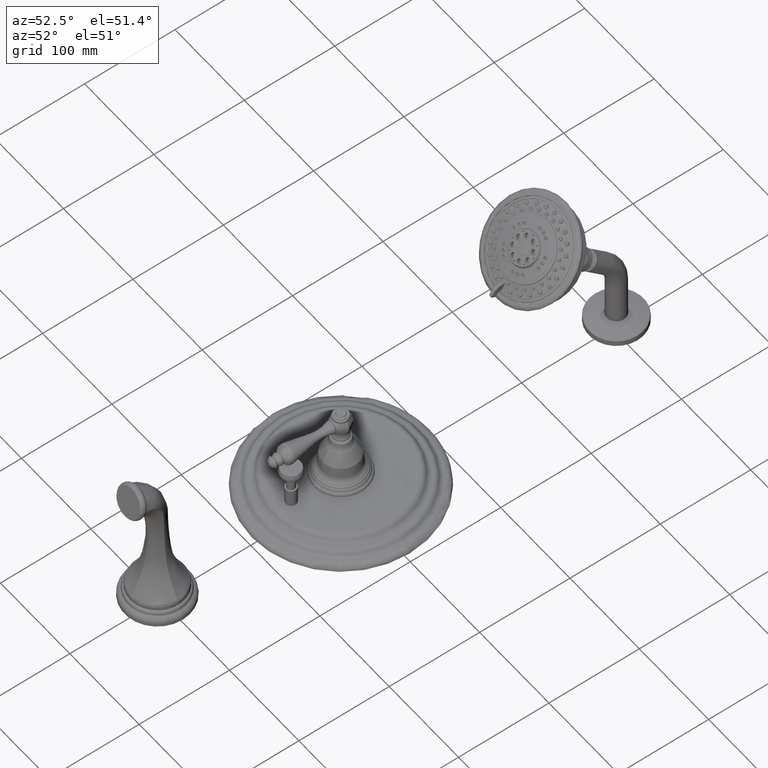
[diagram: clean part render]
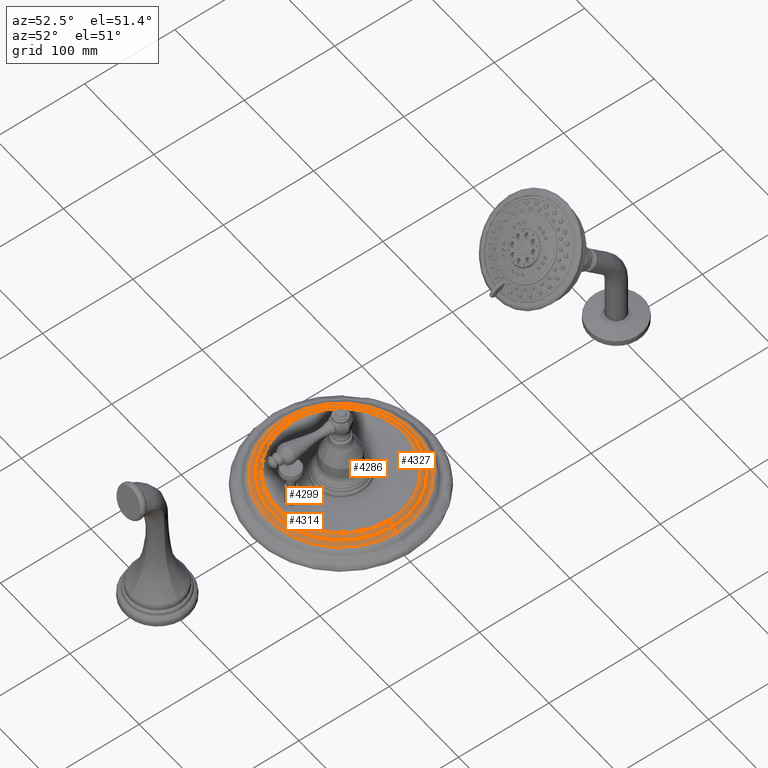
[diagram: same view with one multi-face feature highlighted, each face labeled with its STEP entity id]
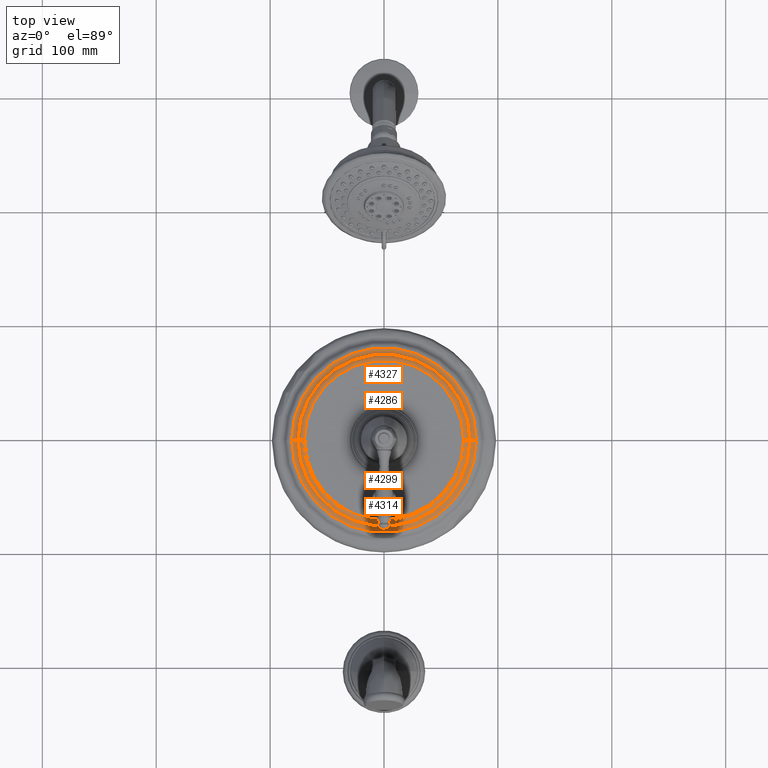
[diagram: same view with one multi-face feature highlighted, each face labeled with its STEP entity id]
A machine part, auxiliary view. The highlighted faces form ONE feature: a constant-radius fillet chain: 4 tangent blend faces with common blend radius 6.35 mm. The faces share edges in the B-rep.
A second angle (top view) of the same feature is appended — it is thin or edge-on in the first view.
Their STEP definitions:
[1] entity #4286 (Torus):
#170=CARTESIAN_POINT('',(0.E0,0.E0,7.54E-1));
#171=DIRECTION('',(0.E0,0.E0,1.E0));
#172=DIRECTION('',(1.E0,0.E0,0.E0));
#173=AXIS2_PLACEMENT_3D('',#170,#171,#172);
#580=CARTESIAN_POINT('',(2.753578185696E0,0.E0,5.04E-1));
#581=DIRECTION('',(0.E0,-1.E0,0.E0));
#582=DIRECTION('',(8.728436286071E-1,0.E0,4.88E-1));
#583=AXIS2_PLACEMENT_3D('',#580,#581,#582);
#585=CARTESIAN_POINT('',(-2.753578185696E0,0.E0,5.04E-1));
#586=DIRECTION('',(0.E0,1.E0,0.E0));
#587=DIRECTION('',(-8.728436286071E-1,0.E0,4.88E-1));
#588=AXIS2_PLACEMENT_3D('',#585,#586,#587);
#590=CARTESIAN_POINT('',(0.E0,0.E0,6.26E-1));
#591=DIRECTION('',(0.E0,0.E0,1.E0));
#592=DIRECTION('',(1.E0,0.E0,0.E0));
#593=AXIS2_PLACEMENT_3D('',#590,#591,#592);
#3097=CARTESIAN_POINT('',(2.971789092848E0,0.E0,6.26E-1));
#3098=VERTEX_POINT('',#3097);
#3099=CARTESIAN_POINT('',(2.753578185696E0,0.E0,7.54E-1));
#3100=VERTEX_POINT('',#3099);
#3107=CARTESIAN_POINT('',(-2.971789092848E0,0.E0,6.26E-1));
#3108=VERTEX_POINT('',#3107);
#3109=CARTESIAN_POINT('',(-2.753578185696E0,0.E0,7.54E-1));
#3110=VERTEX_POINT('',#3109);
#4272=CARTESIAN_POINT('',(0.E0,0.E0,5.04E-1));
#4273=DIRECTION('',(0.E0,0.E0,-1.E0));
#4274=DIRECTION('',(-1.E0,0.E0,0.E0));
#4275=AXIS2_PLACEMENT_3D('',#4272,#4273,#4274);
#4276=TOROIDAL_SURFACE('',#4275,2.753578185696E0,2.5E-1);
#4278=ORIENTED_EDGE('',*,*,#4277,.T.);
#4279=ORIENTED_EDGE('',*,*,#4008,.T.);
#4281=ORIENTED_EDGE('',*,*,#4280,.F.);
#4283=ORIENTED_EDGE('',*,*,#4282,.F.);
#4284=EDGE_LOOP('',(#4278,#4279,#4281,#4283));
#4285=FACE_OUTER_BOUND('',#4284,.F.);
#4286=ADVANCED_FACE('',(#4285),#4276,.T.);
#174=CIRCLE('',#173,2.753578185696E0);
#584=CIRCLE('',#583,2.5E-1);
#589=CIRCLE('',#588,2.5E-1);
#594=CIRCLE('',#593,2.971789092848E0);
#4008=EDGE_CURVE('',#3100,#3110,#174,.T.);
#4277=EDGE_CURVE('',#3098,#3100,#584,.T.);
#4280=EDGE_CURVE('',#3108,#3110,#589,.T.);
#4282=EDGE_CURVE('',#3098,#3108,#594,.T.);
[2] entity #4327 (Torus):
#590=CARTESIAN_POINT('',(0.E0,0.E0,6.26E-1));
#591=DIRECTION('',(0.E0,0.E0,1.E0));
#592=DIRECTION('',(1.E0,0.E0,0.E0));
#593=AXIS2_PLACEMENT_3D('',#590,#591,#592);
#605=CARTESIAN_POINT('',(3.19E0,0.E0,7.48E-1));
#606=DIRECTION('',(0.E0,1.E0,0.E0));
#607=DIRECTION('',(6.272123120599E-3,0.E0,-9.999803300423E-1));
#608=AXIS2_PLACEMENT_3D('',#605,#606,#607);
#610=CARTESIAN_POINT('',(-3.19E0,0.E0,7.48E-1));
#611=DIRECTION('',(0.E0,-1.E0,0.E0));
#612=DIRECTION('',(-6.272123120599E-3,0.E0,-9.999803300423E-1));
#613=AXIS2_PLACEMENT_3D('',#610,#611,#612);
#615=CARTESIAN_POINT('',(0.E0,0.E0,4.980049174894E-1));
#616=DIRECTION('',(0.E0,0.E0,1.E0));
#617=DIRECTION('',(1.E0,0.E0,0.E0));
#618=AXIS2_PLACEMENT_3D('',#615,#616,#617);
#3095=CARTESIAN_POINT('',(3.191568030780E0,0.E0,4.980049174894E-1));
#3096=VERTEX_POINT('',#3095);
#3097=CARTESIAN_POINT('',(2.971789092848E0,0.E0,6.26E-1));
#3098=VERTEX_POINT('',#3097);
#3105=CARTESIAN_POINT('',(-3.191568030780E0,0.E0,4.980049174894E-1));
#3106=VERTEX_POINT('',#3105);
#3107=CARTESIAN_POINT('',(-2.971789092848E0,0.E0,6.26E-1));
#3108=VERTEX_POINT('',#3107);
#4315=CARTESIAN_POINT('',(0.E0,0.E0,7.48E-1));
#4316=DIRECTION('',(0.E0,0.E0,-1.E0));
#4317=DIRECTION('',(-1.E0,0.E0,0.E0));
#4318=AXIS2_PLACEMENT_3D('',#4315,#4316,#4317);
#4319=TOROIDAL_SURFACE('',#4318,3.19E0,2.5E-1);
#4320=ORIENTED_EDGE('',*,*,#4305,.T.);
#4321=ORIENTED_EDGE('',*,*,#4282,.T.);
#4322=ORIENTED_EDGE('',*,*,#4309,.F.);
#4324=ORIENTED_EDGE('',*,*,#4323,.F.);
#4325=EDGE_LOOP('',(#4320,#4321,#4322,#4324));
#4326=FACE_OUTER_BOUND('',#4325,.F.);
#4327=ADVANCED_FACE('',(#4326),#4319,.F.);
#594=CIRCLE('',#593,2.971789092848E0);
#609=CIRCLE('',#608,2.5E-1);
#614=CIRCLE('',#613,2.5E-1);
#619=CIRCLE('',#618,3.191568030780E0);
#4282=EDGE_CURVE('',#3098,#3108,#594,.T.);
#4305=EDGE_CURVE('',#3096,#3098,#609,.T.);
#4309=EDGE_CURVE('',#3106,#3108,#614,.T.);
#4323=EDGE_CURVE('',#3096,#3106,#619,.T.);
[3] entity #4314 (Torus):
#595=CARTESIAN_POINT('',(0.E0,0.E0,6.26E-1));
#596=DIRECTION('',(0.E0,0.E0,-1.E0));
#597=DIRECTION('',(1.E0,0.E0,0.E0));
#598=AXIS2_PLACEMENT_3D('',#595,#596,#597);
#600=CARTESIAN_POINT('',(0.E0,0.E0,4.980049174894E-1));
#601=DIRECTION('',(0.E0,0.E0,-1.E0));
#602=DIRECTION('',(1.E0,0.E0,0.E0));
#603=AXIS2_PLACEMENT_3D('',#600,#601,#602);
#605=CARTESIAN_POINT('',(3.19E0,0.E0,7.48E-1));
#606=DIRECTION('',(0.E0,1.E0,0.E0));
#607=DIRECTION('',(6.272123120599E-3,0.E0,-9.999803300423E-1));
#608=AXIS2_PLACEMENT_3D('',#605,#606,#607);
#610=CARTESIAN_POINT('',(-3.19E0,0.E0,7.48E-1));
#611=DIRECTION('',(0.E0,-1.E0,0.E0));
#612=DIRECTION('',(-6.272123120599E-3,0.E0,-9.999803300423E-1));
#613=AXIS2_PLACEMENT_3D('',#610,#611,#612);
#3095=CARTESIAN_POINT('',(3.191568030780E0,0.E0,4.980049174894E-1));
#3096=VERTEX_POINT('',#3095);
#3097=CARTESIAN_POINT('',(2.971789092848E0,0.E0,6.26E-1));
#3098=VERTEX_POINT('',#3097);
#3105=CARTESIAN_POINT('',(-3.191568030780E0,0.E0,4.980049174894E-1));
#3106=VERTEX_POINT('',#3105);
#3107=CARTESIAN_POINT('',(-2.971789092848E0,0.E0,6.26E-1));
#3108=VERTEX_POINT('',#3107);
#4300=CARTESIAN_POINT('',(0.E0,0.E0,7.48E-1));
#4301=DIRECTION('',(0.E0,0.E0,-1.E0));
#4302=DIRECTION('',(-1.E0,0.E0,0.E0));
#4303=AXIS2_PLACEMENT_3D('',#4300,#4301,#4302);
#4304=TOROIDAL_SURFACE('',#4303,3.19E0,2.5E-1);
#4306=ORIENTED_EDGE('',*,*,#4305,.F.);
#4308=ORIENTED_EDGE('',*,*,#4307,.T.);
#4310=ORIENTED_EDGE('',*,*,#4309,.T.);
#4311=ORIENTED_EDGE('',*,*,#4293,.F.);
#4312=EDGE_LOOP('',(#4306,#4308,#4310,#4311));
#4313=FACE_OUTER_BOUND('',#4312,.F.);
#4314=ADVANCED_FACE('',(#4313),#4304,.F.);
#599=CIRCLE('',#598,2.971789092848E0);
#604=CIRCLE('',#603,3.191568030780E0);
#609=CIRCLE('',#608,2.5E-1);
#614=CIRCLE('',#613,2.5E-1);
#4293=EDGE_CURVE('',#3098,#3108,#599,.T.);
#4305=EDGE_CURVE('',#3096,#3098,#609,.T.);
#4307=EDGE_CURVE('',#3096,#3106,#604,.T.);
#4309=EDGE_CURVE('',#3106,#3108,#614,.T.);
[4] entity #4299 (Torus):
#175=CARTESIAN_POINT('',(0.E0,0.E0,7.54E-1));
#176=DIRECTION('',(0.E0,0.E0,-1.E0));
#177=DIRECTION('',(1.E0,0.E0,0.E0));
#178=AXIS2_PLACEMENT_3D('',#175,#176,#177);
#580=CARTESIAN_POINT('',(2.753578185696E0,0.E0,5.04E-1));
#581=DIRECTION('',(0.E0,-1.E0,0.E0));
#582=DIRECTION('',(8.728436286071E-1,0.E0,4.88E-1));
#583=AXIS2_PLACEMENT_3D('',#580,#581,#582);
#585=CARTESIAN_POINT('',(-2.753578185696E0,0.E0,5.04E-1));
#586=DIRECTION('',(0.E0,1.E0,0.E0));
#587=DIRECTION('',(-8.728436286071E-1,0.E0,4.88E-1));
#588=AXIS2_PLACEMENT_3D('',#585,#586,#587);
#595=CARTESIAN_POINT('',(0.E0,0.E0,6.26E-1));
#596=DIRECTION('',(0.E0,0.E0,-1.E0));
#597=DIRECTION('',(1.E0,0.E0,0.E0));
#598=AXIS2_PLACEMENT_3D('',#595,#596,#597);
#3097=CARTESIAN_POINT('',(2.971789092848E0,0.E0,6.26E-1));
#3098=VERTEX_POINT('',#3097);
#3099=CARTESIAN_POINT('',(2.753578185696E0,0.E0,7.54E-1));
#3100=VERTEX_POINT('',#3099);
#3107=CARTESIAN_POINT('',(-2.971789092848E0,0.E0,6.26E-1));
#3108=VERTEX_POINT('',#3107);
#3109=CARTESIAN_POINT('',(-2.753578185696E0,0.E0,7.54E-1));
#3110=VERTEX_POINT('',#3109);
#4287=CARTESIAN_POINT('',(0.E0,0.E0,5.04E-1));
#4288=DIRECTION('',(0.E0,0.E0,-1.E0));
#4289=DIRECTION('',(-1.E0,0.E0,0.E0));
#4290=AXIS2_PLACEMENT_3D('',#4287,#4288,#4289);
#4291=TOROIDAL_SURFACE('',#4290,2.753578185696E0,2.5E-1);
#4292=ORIENTED_EDGE('',*,*,#4277,.F.);
#4294=ORIENTED_EDGE('',*,*,#4293,.T.);
#4295=ORIENTED_EDGE('',*,*,#4280,.T.);
#4296=ORIENTED_EDGE('',*,*,#4010,.F.);
#4297=EDGE_LOOP('',(#4292,#4294,#4295,#4296));
#4298=FACE_OUTER_BOUND('',#4297,.F.);
#4299=ADVANCED_FACE('',(#4298),#4291,.T.);
#179=CIRCLE('',#178,2.753578185696E0);
#584=CIRCLE('',#583,2.5E-1);
#589=CIRCLE('',#588,2.5E-1);
#599=CIRCLE('',#598,2.971789092848E0);
#4010=EDGE_CURVE('',#3100,#3110,#179,.T.);
#4277=EDGE_CURVE('',#3098,#3100,#584,.T.);
#4280=EDGE_CURVE('',#3108,#3110,#589,.T.);
#4293=EDGE_CURVE('',#3098,#3108,#599,.T.);